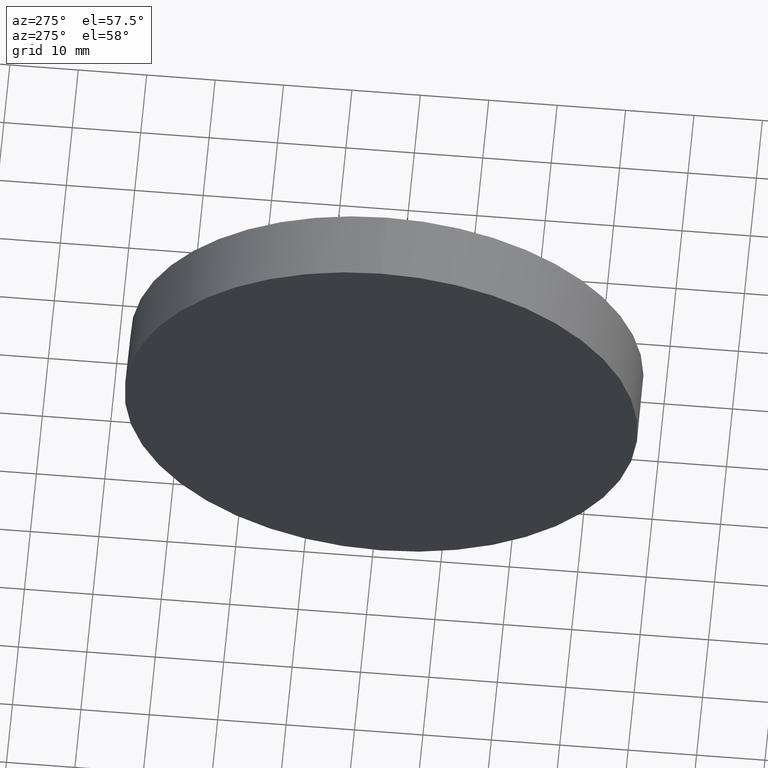
[diagram: clean part render]
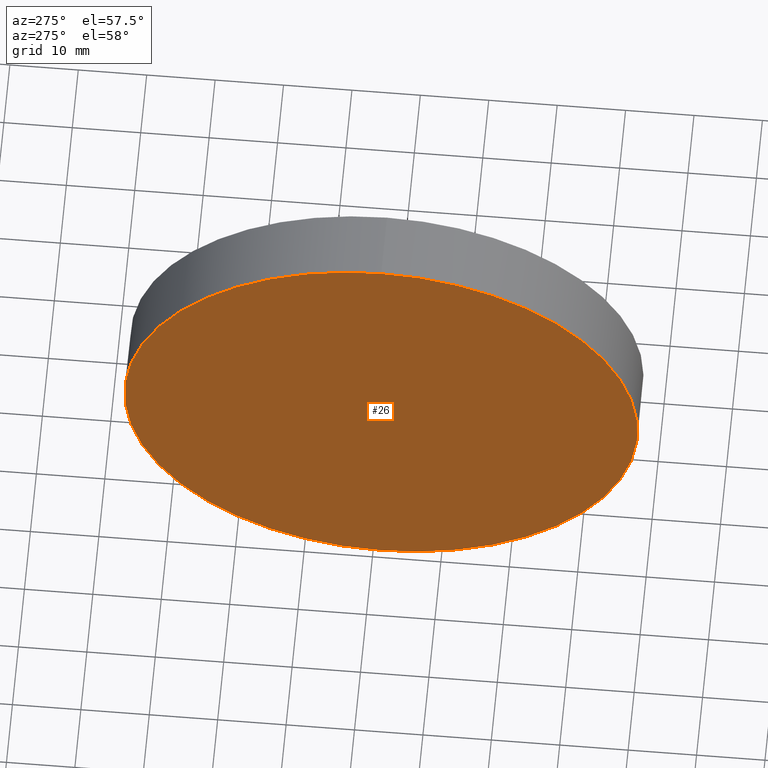
[diagram: same view with one face highlighted and labeled with its STEP entity id]
A machine part, auxiliary view. The second image highlights one B-rep face of the part: STEP entity #26.
In plain terms, the highlighted planar face has unit normal (1, 0, 0).
Its self-contained STEP definition (entity closure, byte-faithful):
#6 = EDGE_CURVE ( 'NONE', #42, #91, #179, .T. ) ;
#22 = EDGE_CURVE ( 'NONE', #91, #42, #138, .T. ) ;
#23 = CARTESIAN_POINT ( 'NONE',  ( 230.1996119052661200, 138.7560422467448700, 0.0000000000000000000 ) ) ;
#26 = ADVANCED_FACE ( 'NONE', ( #158 ), #144, .F. ) ;
#34 = AXIS2_PLACEMENT_3D ( 'NONE', #23, #41, #61 ) ;
#41 = DIRECTION ( 'NONE',  ( -1.000000000000000000, -0.0000000000000000000, -0.0000000000000000000 ) ) ;
#42 = VERTEX_POINT ( 'NONE', #133 ) ;
#49 = ORIENTED_EDGE ( 'NONE', *, *, #6, .T. ) ;
#61 = DIRECTION ( 'NONE',  ( 0.0000000000000000000, 0.0000000000000000000, 1.000000000000000000 ) ) ;
#64 = CARTESIAN_POINT ( 'NONE',  ( 230.1996119052661200, 138.7560422467448700, 0.0000000000000000000 ) ) ;
#80 = CARTESIAN_POINT ( 'NONE',  ( 230.1996119052661200, 138.7560422467448700, -37.50000000000000700 ) ) ;
#86 = ORIENTED_EDGE ( 'NONE', *, *, #22, .T. ) ;
#88 = AXIS2_PLACEMENT_3D ( 'NONE', #64, #109, #122 ) ;
#91 = VERTEX_POINT ( 'NONE', #80 ) ;
#101 = DIRECTION ( 'NONE',  ( -1.000000000000000000, -0.0000000000000000000, -0.0000000000000000000 ) ) ;
#109 = DIRECTION ( 'NONE',  ( 1.000000000000000000, 0.0000000000000000000, 0.0000000000000000000 ) ) ;
#122 = DIRECTION ( 'NONE',  ( 0.0000000000000000000, 0.0000000000000000000, -1.000000000000000000 ) ) ;
#133 = CARTESIAN_POINT ( 'NONE',  ( 230.1996119052661200, 138.7560422467448700, 37.50000000000000700 ) ) ;
#138 = CIRCLE ( 'NONE', #34, 37.50000000000000700 ) ;
#144 = PLANE ( 'NONE',  #88 ) ;
#153 = EDGE_LOOP ( 'NONE', ( #49, #86 ) ) ;
#158 = FACE_OUTER_BOUND ( 'NONE', #153, .T. ) ;
#175 = AXIS2_PLACEMENT_3D ( 'NONE', #184, #101, #186 ) ;
#179 = CIRCLE ( 'NONE', #175, 37.50000000000000700 ) ;
#184 = CARTESIAN_POINT ( 'NONE',  ( 230.1996119052661200, 138.7560422467448700, 0.0000000000000000000 ) ) ;
#186 = DIRECTION ( 'NONE',  ( 0.0000000000000000000, 0.0000000000000000000, 1.000000000000000000 ) ) ;